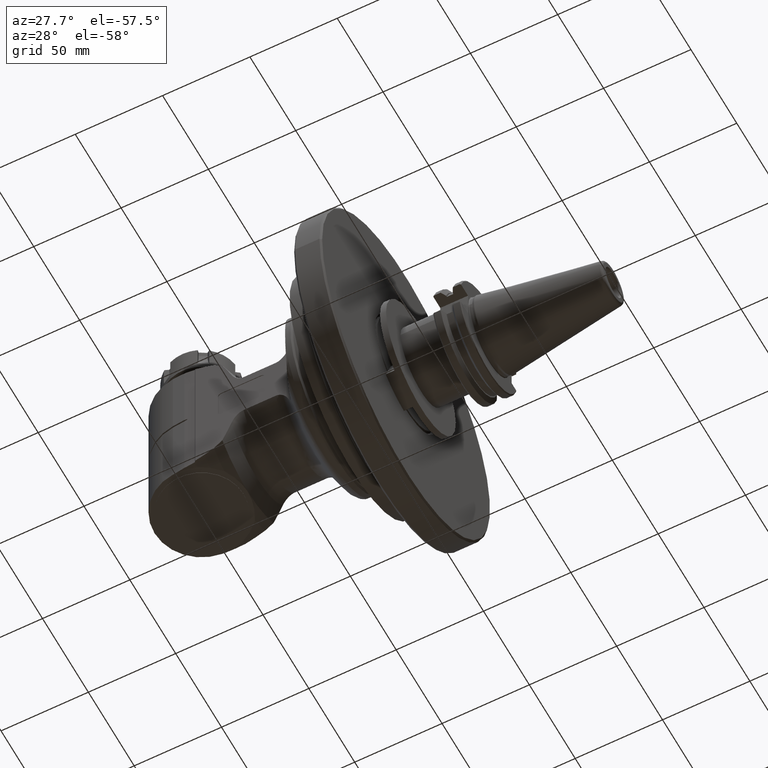
[diagram: clean part render]
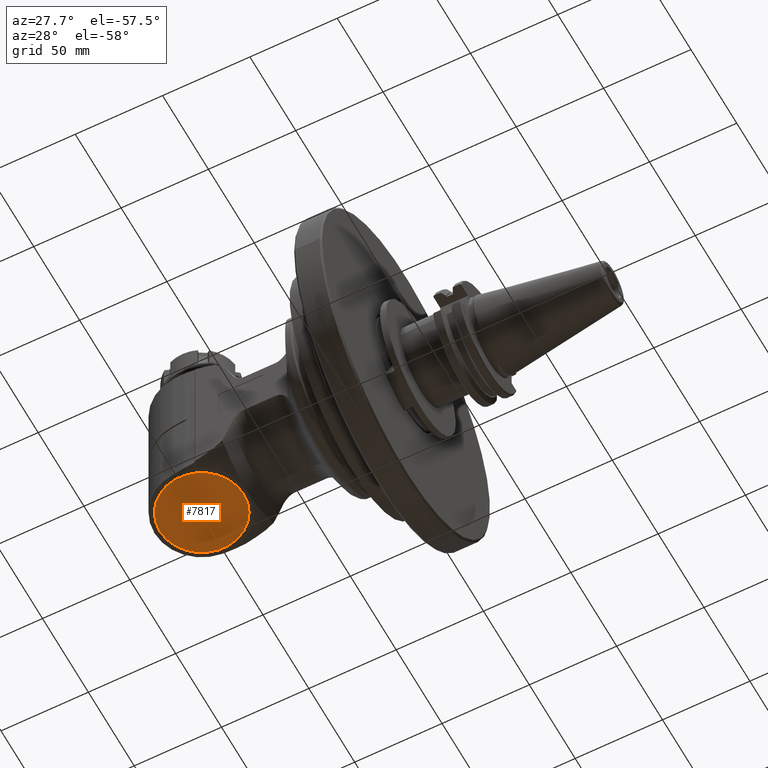
[diagram: same view with one face highlighted and labeled with its STEP entity id]
A machine part, auxiliary view. The second image highlights one B-rep face of the part: STEP entity #7817.
In plain terms, the highlighted planar face has unit normal (0, 0, -1).
Its self-contained STEP definition (entity closure, byte-faithful):
#746=CIRCLE('',#8549,0.94488188976378);
#1149=FACE_OUTER_BOUND('',#1650,.T.);
#1650=EDGE_LOOP('',(#6047));
#3464=VERTEX_POINT('',#13067);
#4397=EDGE_CURVE('',#3464,#3464,#746,.T.);
#6047=ORIENTED_EDGE('',*,*,#4397,.T.);
#7460=PLANE('',#8550);
#7817=ADVANCED_FACE('',(#1149),#7460,.T.);
#8549=AXIS2_PLACEMENT_3D('',#13068,#9999,#10000);
#8550=AXIS2_PLACEMENT_3D('',#13070,#10002,#10003);
#9999=DIRECTION('center_axis',(0.,1.,0.));
#10000=DIRECTION('ref_axis',(-1.,0.,0.));
#10002=DIRECTION('center_axis',(0.,1.,0.));
#10003=DIRECTION('ref_axis',(-1.,0.,0.));
#13067=CARTESIAN_POINT('',(4.40944881889756,1.77952755905512,-1.15714658187152E-16));
#13068=CARTESIAN_POINT('Origin',(3.46456692913378,1.77952755905512,0.));
#13070=CARTESIAN_POINT('Origin',(-0.0787401574803937,1.77952755905512,0.));